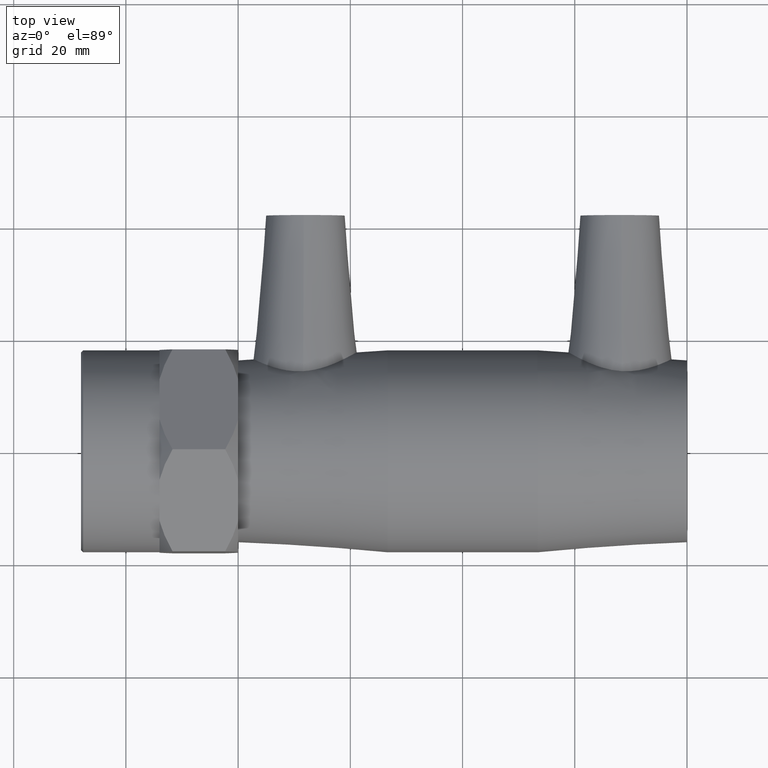
[diagram: clean part render]
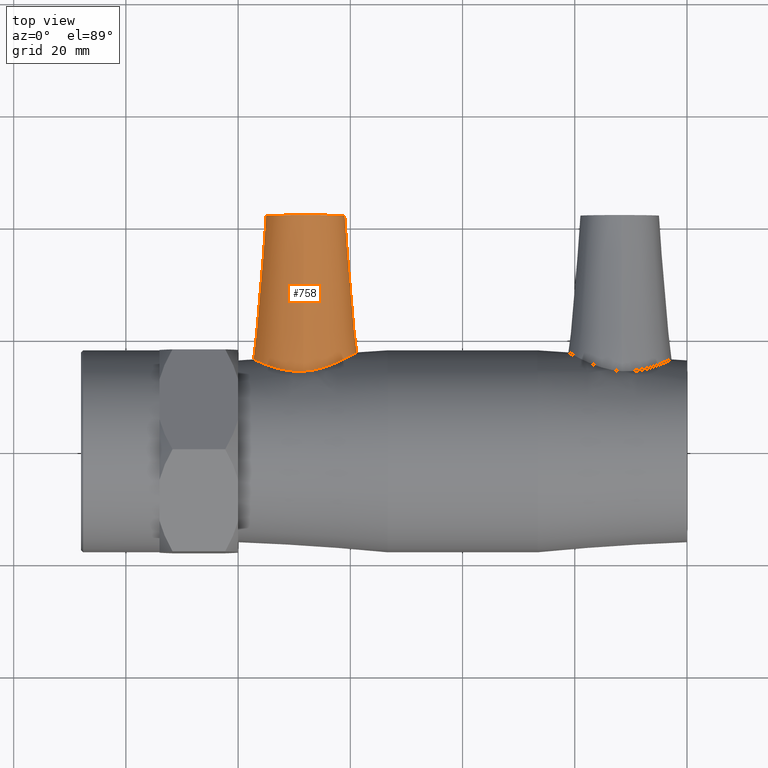
[diagram: same view with one face highlighted and labeled with its STEP entity id]
A machine part, top view. The second image highlights one B-rep face of the part: STEP entity #758.
In plain terms, the highlighted conical surface has half-angle 5 deg.
Its self-contained STEP definition (entity closure, byte-faithful):
#16=B_SPLINE_CURVE_WITH_KNOTS('',3,(#1375,#1376,#1377,#1378,#1379,#1380,
#1381,#1382,#1383,#1384,#1385,#1386,#1387,#1388,#1389,#1390,#1391,#1392,
#1393,#1394,#1395,#1396,#1397,#1398,#1399,#1400,#1401,#1402,#1403,#1404,
#1405,#1406,#1407,#1408),.UNSPECIFIED.,.T.,.F.,(4,2,2,2,2,2,2,2,2,2,2,2,
2,2,2,2,4),(0.,0.348332628844758,0.696665257689515,1.04617405837745,1.39568285906538,
1.74519165975331,2.09470046044124,2.443033089286,2.79136571813076,3.17014890204255,
3.54893208595434,3.91446901302346,4.28000594009258,4.6455428671617,5.01107979423082,
5.38986297814261,5.7686461620544),.UNSPECIFIED.);
#143=FACE_BOUND('',#274,.T.);
#199=FACE_OUTER_BOUND('',#273,.T.);
#273=EDGE_LOOP('',(#674));
#274=EDGE_LOOP('',(#675));
#329=CIRCLE('',#850,7.);
#398=VERTEX_POINT('',#1332);
#401=VERTEX_POINT('',#1374);
#493=EDGE_CURVE('',#398,#398,#329,.T.);
#496=EDGE_CURVE('',#401,#401,#16,.T.);
#674=ORIENTED_EDGE('',*,*,#493,.T.);
#675=ORIENTED_EDGE('',*,*,#496,.F.);
#708=CONICAL_SURFACE('',#854,7.,5.);
#758=ADVANCED_FACE('',(#199,#143),#708,.T.);
#850=AXIS2_PLACEMENT_3D('',#1333,#1057,#1058);
#854=AXIS2_PLACEMENT_3D('',#1373,#1065,#1066);
#1057=DIRECTION('center_axis',(0.,-1.,0.));
#1058=DIRECTION('ref_axis',(1.,0.,0.));
#1065=DIRECTION('center_axis',(0.,-1.,0.));
#1066=DIRECTION('ref_axis',(1.,0.,0.));
#1332=CARTESIAN_POINT('',(-35.,42.,8.57252759403147E-16));
#1333=CARTESIAN_POINT('Origin',(-28.,42.,0.));
#1373=CARTESIAN_POINT('Origin',(-28.,42.,0.));
#1374=CARTESIAN_POINT('',(-28.399821160678,14.1241350927068,9.43035030679782));
#1375=CARTESIAN_POINT('Ctrl Pts',(-28.399821160678,14.1241350927068,9.43035030679782));
#1376=CARTESIAN_POINT('Ctrl Pts',(-29.5582937773866,14.0591016582511,9.38692902368589));
#1377=CARTESIAN_POINT('Ctrl Pts',(-30.7677533615037,14.1598009731317,9.10074209644455));
#1378=CARTESIAN_POINT('Ctrl Pts',(-32.9499684738589,14.5990021220282,8.07825229877566));
#1379=CARTESIAN_POINT('Ctrl Pts',(-33.9258419488372,14.9242635177206,7.34296198494501));
#1380=CARTESIAN_POINT('Ctrl Pts',(-35.4582140835152,15.5172011136667,5.6963961340903));
#1381=CARTESIAN_POINT('Ctrl Pts',(-36.1255075869239,15.8289646778412,4.66424253803556));
#1382=CARTESIAN_POINT('Ctrl Pts',(-37.0174331704257,16.2658063690903,2.39923253323158));
#1383=CARTESIAN_POINT('Ctrl Pts',(-37.2409137772516,16.3862383200355,1.16502933562644));
#1384=CARTESIAN_POINT('Ctrl Pts',(-37.2409137772516,16.3862383200355,-1.16502933562644));
#1385=CARTESIAN_POINT('Ctrl Pts',(-37.0174331704257,16.2658063690903,-2.39923253323158));
#1386=CARTESIAN_POINT('Ctrl Pts',(-36.1255075869239,15.8289646778412,-4.66424253803556));
#1387=CARTESIAN_POINT('Ctrl Pts',(-35.4582140835152,15.5172011136667,-5.6963961340903));
#1388=CARTESIAN_POINT('Ctrl Pts',(-33.9258419488372,14.9242635177206,-7.34296198494501));
#1389=CARTESIAN_POINT('Ctrl Pts',(-32.9499684738589,14.5990021220282,-8.07825229877566));
#1390=CARTESIAN_POINT('Ctrl Pts',(-30.7677533615037,14.1598009731317,-9.10074209644455));
#1391=CARTESIAN_POINT('Ctrl Pts',(-29.5582937773866,14.0591016582511,-9.38692902368589));
#1392=CARTESIAN_POINT('Ctrl Pts',(-27.1400771404672,14.1948536224223,-9.47756739329707));
#1393=CARTESIAN_POINT('Ctrl Pts',(-25.837585525547,14.4645664085235,-9.24526542998381));
#1394=CARTESIAN_POINT('Ctrl Pts',(-23.4818770130764,15.221152021661,-8.27625189046756));
#1395=CARTESIAN_POINT('Ctrl Pts',(-22.4243364837795,15.6948781588326,-7.53983600039849));
#1396=CARTESIAN_POINT('Ctrl Pts',(-20.7825108763238,16.5092670499275,-5.86745056369971));
#1397=CARTESIAN_POINT('Ctrl Pts',(-20.0711696130994,16.9115874689751,-4.82281308580197));
#1398=CARTESIAN_POINT('Ctrl Pts',(-19.1129421219156,17.4725260225259,-2.49919885920522));
#1399=CARTESIAN_POINT('Ctrl Pts',(-18.8675896091282,17.6264377013838,-1.21845642356373));
#1400=CARTESIAN_POINT('Ctrl Pts',(-18.8675896091282,17.6264377013838,1.21845642356373));
#1401=CARTESIAN_POINT('Ctrl Pts',(-19.1129421219156,17.4725260225259,2.49919885920522));
#1402=CARTESIAN_POINT('Ctrl Pts',(-20.0711696130994,16.9115874689751,4.82281308580197));
#1403=CARTESIAN_POINT('Ctrl Pts',(-20.7825108763238,16.5092670499275,5.86745056369971));
#1404=CARTESIAN_POINT('Ctrl Pts',(-22.4243364837795,15.6948781588326,7.53983600039849));
#1405=CARTESIAN_POINT('Ctrl Pts',(-23.4818770130764,15.221152021661,8.27625189046756));
#1406=CARTESIAN_POINT('Ctrl Pts',(-25.837585525547,14.4645664085235,9.24526542998381));
#1407=CARTESIAN_POINT('Ctrl Pts',(-27.1400771404672,14.1948536224223,9.47756739329707));
#1408=CARTESIAN_POINT('Ctrl Pts',(-28.399821160678,14.1241350927068,9.43035030679782));